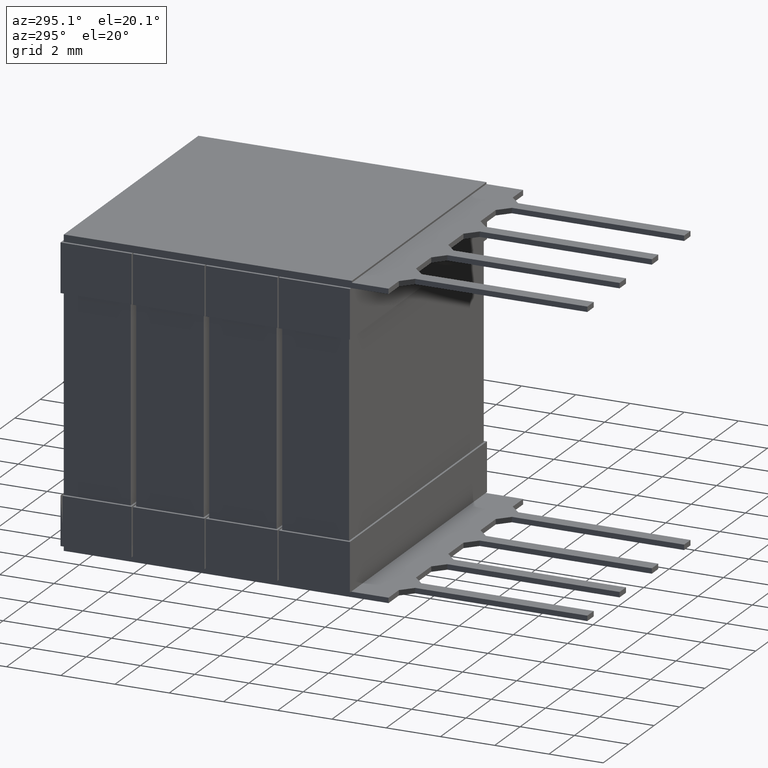
[diagram: clean part render]
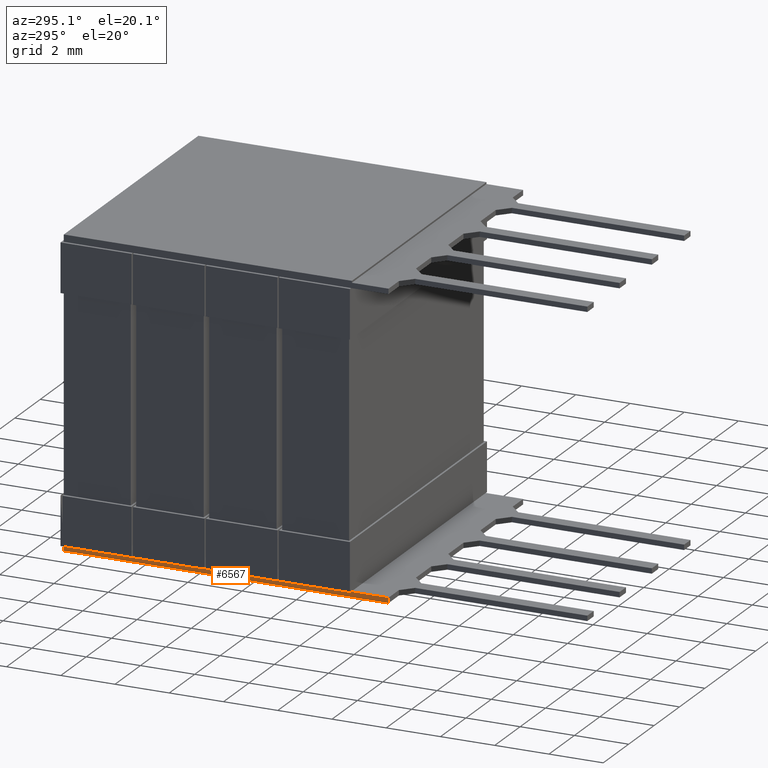
[diagram: same view with one face highlighted and labeled with its STEP entity id]
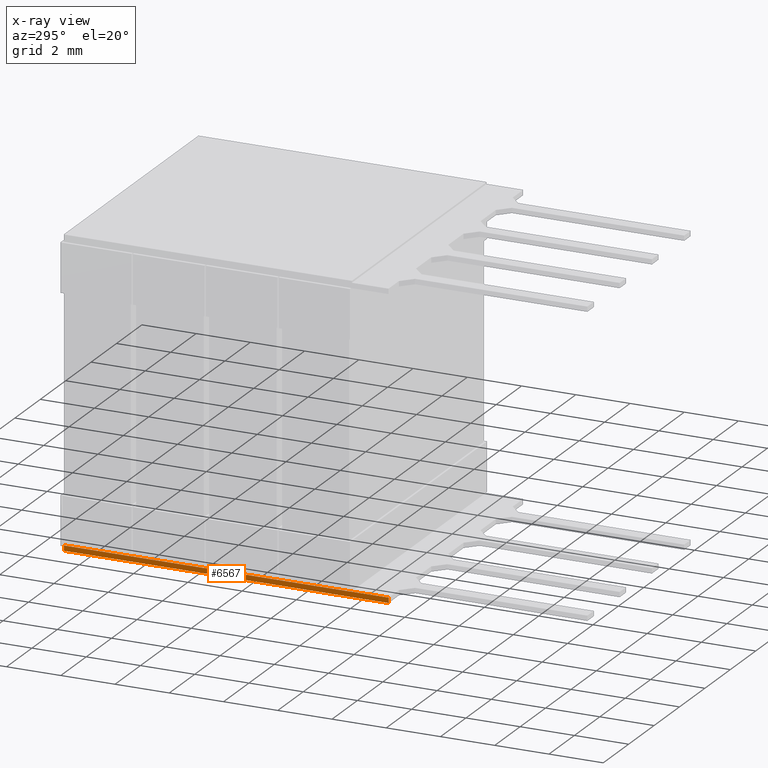
[diagram: x-ray of the same camera — body ghosted, the highlighted face saturated]
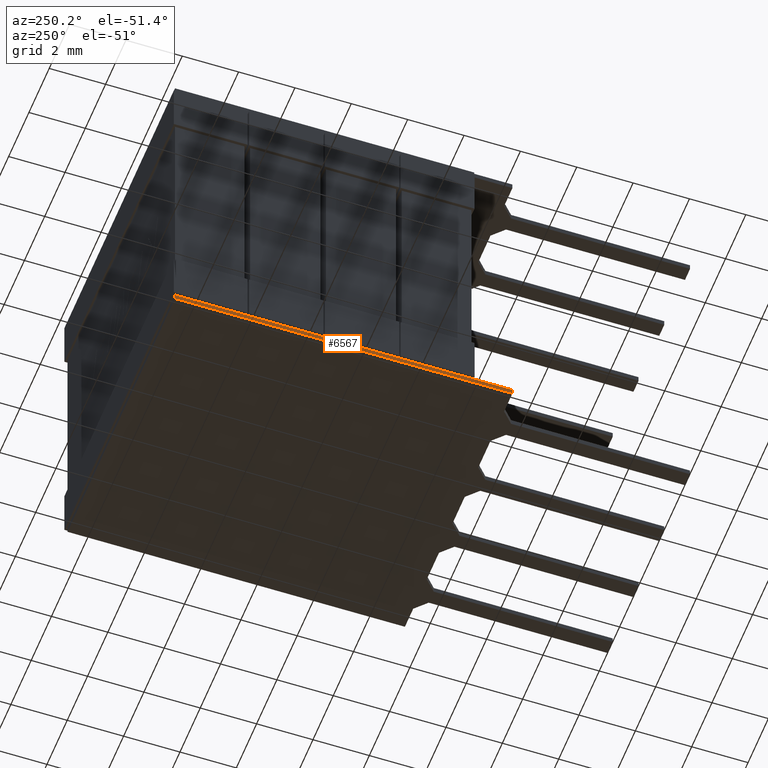
[diagram: same view with one face highlighted and labeled with its STEP entity id]
A machine part, auxiliary view. The second image highlights one B-rep face of the part: STEP entity #6567.
The next image is the same camera in x-ray: the body ghosted, the highlighted face saturated — about 0% of this face is hidden behind the body in this view.
A second angle (auxiliary view) of the same face is appended — the face is thin or edge-on in the first view.
In plain terms, the highlighted planar face has unit normal (-1, -0, 0).
Its self-contained STEP definition (entity closure, byte-faithful):
#72 = CARTESIAN_POINT ( 'NONE',  ( 0.09999999999997896700, 10.62000000000000100, -10.98750000000000100 ) ) ;
#136 = EDGE_CURVE ( 'NONE', #3579, #1289, #7835, .T. ) ;
#208 = LINE ( 'NONE', #6843, #1310 ) ;
#278 = VERTEX_POINT ( 'NONE', #2396 ) ;
#338 = DIRECTION ( 'NONE',  ( 1.756746191114908800E-015, -1.000000000000000000, 0.0000000000000000000 ) ) ;
#418 = VECTOR ( 'NONE', #2398, 1000.000000000000000 ) ;
#429 = CARTESIAN_POINT ( 'NONE',  ( 0.09999999999997896700, 10.62000000000000100, -10.79499999999999800 ) ) ;
#518 = CARTESIAN_POINT ( 'NONE',  ( 0.09999999999999292800, 2.647500000000000400, -10.79499999999999800 ) ) ;
#531 = EDGE_CURVE ( 'NONE', #278, #2586, #2634, .T. ) ;
#646 = EDGE_CURVE ( 'NONE', #1289, #7653, #208, .T. ) ;
#727 = ORIENTED_EDGE ( 'NONE', *, *, #8066, .F. ) ;
#1070 = VECTOR ( 'NONE', #2093, 1000.000000000000000 ) ;
#1289 = VERTEX_POINT ( 'NONE', #2425 ) ;
#1310 = VECTOR ( 'NONE', #1606, 1000.000000000000000 ) ;
#1606 = DIRECTION ( 'NONE',  ( 1.756746191114908800E-015, -1.000000000000000000, 0.0000000000000000000 ) ) ;
#1761 = CARTESIAN_POINT ( 'NONE',  ( 0.09999999999999760500, 0.02500000000000000100, -10.79500000000000000 ) ) ;
#1768 = CARTESIAN_POINT ( 'NONE',  ( 0.09999999999997896700, 10.62000000000000100, -10.79500000000000000 ) ) ;
#1821 = VECTOR ( 'NONE', #7327, 1000.000000000000000 ) ;
#2019 = LINE ( 'NONE', #2170, #5666 ) ;
#2093 = DIRECTION ( 'NONE',  ( 1.756746191114908800E-015, -1.000000000000000000, 0.0000000000000000000 ) ) ;
#2170 = CARTESIAN_POINT ( 'NONE',  ( 0.09999999999997896700, 10.62000000000000100, -10.79500000000000000 ) ) ;
#2215 = CARTESIAN_POINT ( 'NONE',  ( 0.09999999999998349100, 8.027499999999999900, -10.79499999999999800 ) ) ;
#2275 = ORIENTED_EDGE ( 'NONE', *, *, #4618, .F. ) ;
#2396 = CARTESIAN_POINT ( 'NONE',  ( 0.09999999999997896700, 10.62000000000000100, -10.98750000000000100 ) ) ;
#2398 = DIRECTION ( 'NONE',  ( 1.756746191114908800E-015, -1.000000000000000000, 0.0000000000000000000 ) ) ;
#2425 = CARTESIAN_POINT ( 'NONE',  ( 0.09999999999998819600, 5.337500000000000400, -10.79499999999999800 ) ) ;
#2586 = VERTEX_POINT ( 'NONE', #4760 ) ;
#2634 = LINE ( 'NONE', #5842, #4241 ) ;
#2779 = EDGE_CURVE ( 'NONE', #2586, #3014, #6711, .T. ) ;
#2948 = ORIENTED_EDGE ( 'NONE', *, *, #136, .F. ) ;
#2965 = ORIENTED_EDGE ( 'NONE', *, *, #7506, .F. ) ;
#3014 = VERTEX_POINT ( 'NONE', #3198 ) ;
#3104 = ORIENTED_EDGE ( 'NONE', *, *, #4844, .T. ) ;
#3134 = ORIENTED_EDGE ( 'NONE', *, *, #5275, .T. ) ;
#3198 = CARTESIAN_POINT ( 'NONE',  ( 0.09999999999998344900, 8.077500000000000600, -10.79500000000000000 ) ) ;
#3238 = LINE ( 'NONE', #5710, #418 ) ;
#3313 = DIRECTION ( 'NONE',  ( -0.0000000000000000000, -0.0000000000000000000, 1.000000000000000000 ) ) ;
#3524 = CARTESIAN_POINT ( 'NONE',  ( 0.09999999999997896700, 10.62000000000000100, -10.79499999999999800 ) ) ;
#3556 = DIRECTION ( 'NONE',  ( 1.756746191114908800E-015, -1.000000000000000000, 0.0000000000000000000 ) ) ;
#3579 = VERTEX_POINT ( 'NONE', #4742 ) ;
#3975 = VECTOR ( 'NONE', #338, 1000.000000000000000 ) ;
#4015 = DIRECTION ( 'NONE',  ( 1.756746191114908800E-015, -1.000000000000000000, 0.0000000000000000000 ) ) ;
#4111 = LINE ( 'NONE', #5231, #1070 ) ;
#4190 = VECTOR ( 'NONE', #6179, 1000.000000000000000 ) ;
#4241 = VECTOR ( 'NONE', #5927, 1000.000000000000000 ) ;
#4346 = VERTEX_POINT ( 'NONE', #1761 ) ;
#4508 = LINE ( 'NONE', #3524, #4190 ) ;
#4533 = PLANE ( 'NONE',  #5886 ) ;
#4587 = DIRECTION ( 'NONE',  ( -1.000000000000000000, -1.756746191114908800E-015, 0.0000000000000000000 ) ) ;
#4596 = CARTESIAN_POINT ( 'NONE',  ( 0.1000000000000000100, -1.352999999999990200, -10.98750000000000100 ) ) ;
#4618 = EDGE_CURVE ( 'NONE', #8103, #3579, #3238, .T. ) ;
#4634 = ORIENTED_EDGE ( 'NONE', *, *, #6854, .F. ) ;
#4636 = ORIENTED_EDGE ( 'NONE', *, *, #6820, .F. ) ;
#4647 = LINE ( 'NONE', #4596, #5166 ) ;
#4706 = VERTEX_POINT ( 'NONE', #518 ) ;
#4742 = CARTESIAN_POINT ( 'NONE',  ( 0.09999999999998815400, 5.387500000000002000, -10.79500000000000000 ) ) ;
#4760 = CARTESIAN_POINT ( 'NONE',  ( 0.09999999999997896700, 10.62000000000000100, -10.79500000000000000 ) ) ;
#4766 = VECTOR ( 'NONE', #4015, 1000.000000000000000 ) ;
#4787 = VERTEX_POINT ( 'NONE', #5736 ) ;
#4844 = EDGE_CURVE ( 'NONE', #278, #4787, #6517, .T. ) ;
#5104 = ORIENTED_EDGE ( 'NONE', *, *, #646, .F. ) ;
#5158 = ORIENTED_EDGE ( 'NONE', *, *, #2779, .F. ) ;
#5166 = VECTOR ( 'NONE', #3313, 1000.000000000000000 ) ;
#5231 = CARTESIAN_POINT ( 'NONE',  ( 0.09999999999997896700, 10.62000000000000100, -10.79499999999999800 ) ) ;
#5275 = EDGE_CURVE ( 'NONE', #4787, #5416, #4647, .T. ) ;
#5416 = VERTEX_POINT ( 'NONE', #7927 ) ;
#5486 = ORIENTED_EDGE ( 'NONE', *, *, #531, .F. ) ;
#5666 = VECTOR ( 'NONE', #3556, 1000.000000000000000 ) ;
#5710 = CARTESIAN_POINT ( 'NONE',  ( 0.09999999999997896700, 10.62000000000000100, -10.79500000000000000 ) ) ;
#5736 = CARTESIAN_POINT ( 'NONE',  ( 0.1000000000000000100, -1.352999999999990200, -10.98750000000000100 ) ) ;
#5842 = CARTESIAN_POINT ( 'NONE',  ( 0.09999999999997896700, 10.62000000000000100, -10.98750000000000100 ) ) ;
#5886 = AXIS2_PLACEMENT_3D ( 'NONE', #72, #4587, #6451 ) ;
#5927 = DIRECTION ( 'NONE',  ( -0.0000000000000000000, -0.0000000000000000000, 1.000000000000000000 ) ) ;
#6000 = CARTESIAN_POINT ( 'NONE',  ( 0.09999999999997896700, 10.62000000000000100, -10.98750000000000100 ) ) ;
#6127 = CARTESIAN_POINT ( 'NONE',  ( 0.09999999999997896700, 10.62000000000000100, -10.79500000000000000 ) ) ;
#6179 = DIRECTION ( 'NONE',  ( 1.756746191114908800E-015, -1.000000000000000000, 0.0000000000000000000 ) ) ;
#6451 = DIRECTION ( 'NONE',  ( 1.756746191114908800E-015, -1.000000000000000000, 0.0000000000000000000 ) ) ;
#6517 = LINE ( 'NONE', #6000, #4766 ) ;
#6567 = ADVANCED_FACE ( 'NONE', ( #7004 ), #4533, .T. ) ;
#6711 = LINE ( 'NONE', #1768, #6914 ) ;
#6820 = EDGE_CURVE ( 'NONE', #4346, #5416, #2019, .T. ) ;
#6843 = CARTESIAN_POINT ( 'NONE',  ( 0.09999999999997896700, 10.62000000000000100, -10.79500000000000000 ) ) ;
#6854 = EDGE_CURVE ( 'NONE', #4706, #4346, #7609, .T. ) ;
#6914 = VECTOR ( 'NONE', #7648, 1000.000000000000000 ) ;
#7004 = FACE_OUTER_BOUND ( 'NONE', #7577, .T. ) ;
#7293 = CARTESIAN_POINT ( 'NONE',  ( 0.09999999999999288600, 2.697500000000002000, -10.79500000000000000 ) ) ;
#7327 = DIRECTION ( 'NONE',  ( 1.756746191114908800E-015, -1.000000000000000000, 0.0000000000000000000 ) ) ;
#7506 = EDGE_CURVE ( 'NONE', #3014, #8103, #4111, .T. ) ;
#7577 = EDGE_LOOP ( 'NONE', ( #5158, #5486, #3104, #3134, #4636, #4634, #727, #5104, #2948, #2275, #2965 ) ) ;
#7609 = LINE ( 'NONE', #6127, #1821 ) ;
#7648 = DIRECTION ( 'NONE',  ( 1.756746191114908800E-015, -1.000000000000000000, 0.0000000000000000000 ) ) ;
#7653 = VERTEX_POINT ( 'NONE', #7293 ) ;
#7835 = LINE ( 'NONE', #429, #3975 ) ;
#7927 = CARTESIAN_POINT ( 'NONE',  ( 0.1000000000000000100, -1.352999999999990200, -10.79500000000000000 ) ) ;
#8066 = EDGE_CURVE ( 'NONE', #7653, #4706, #4508, .T. ) ;
#8103 = VERTEX_POINT ( 'NONE', #2215 ) ;